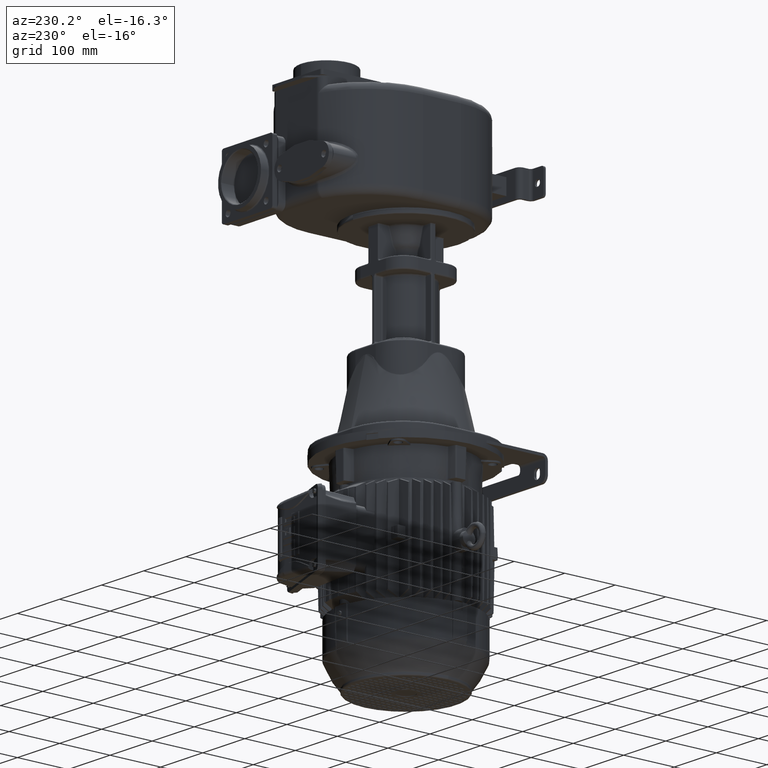
[diagram: clean part render]
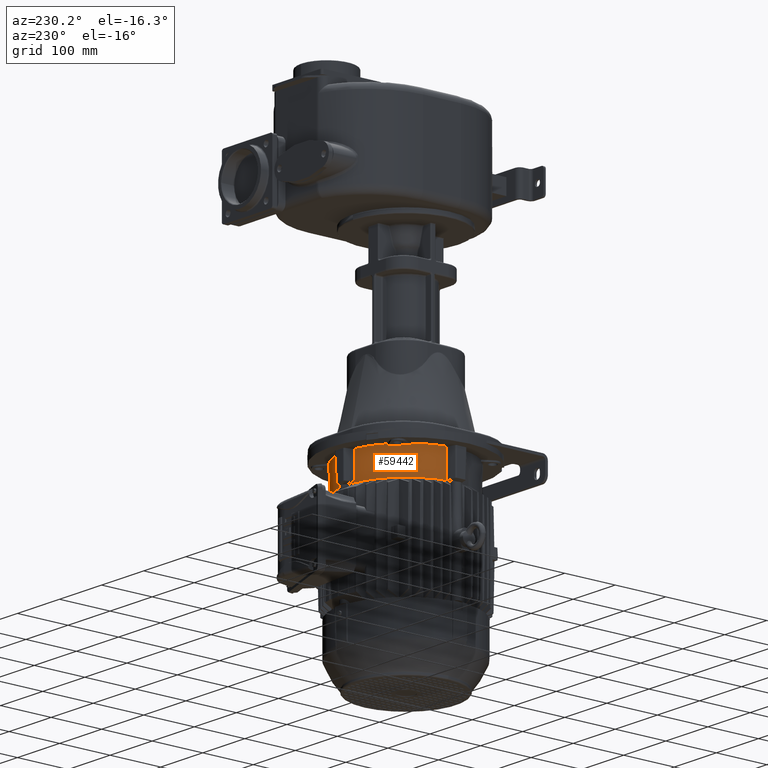
[diagram: same view with one face highlighted and labeled with its STEP entity id]
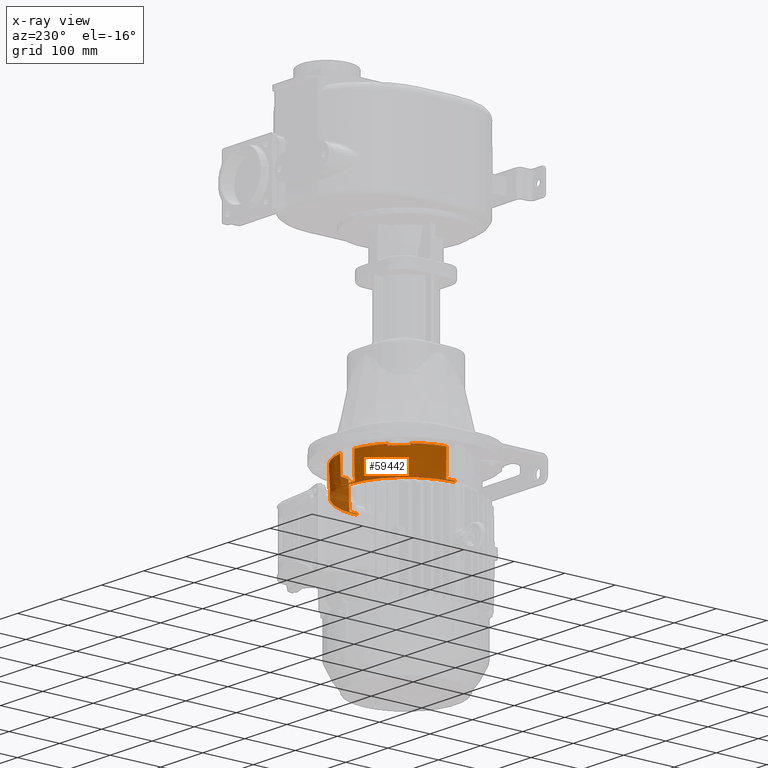
[diagram: x-ray of the same camera — body ghosted, the highlighted face saturated]
A machine part, auxiliary view. The second image highlights one B-rep face of the part: STEP entity #59442.
The next image is the same camera in x-ray: the body ghosted, the highlighted face saturated — about 11% of this face is hidden behind the body in this view.
In plain terms, the highlighted conical surface has half-angle 1.5 deg.
Its self-contained STEP definition (entity closure, byte-faithful):
#11921=DIRECTION('',(-2.617694830787E-2,1.136421979718E-13,-9.996573249756E-1));
#11922=VECTOR('',#11921,2.000785619261E0);
#11923=CARTESIAN_POINT('',(1.160523718431E2,1.309999999999E2,-4.99E2));
#11924=LINE('',#11923,#11922);
#11925=CARTESIAN_POINT('',(1.161959646731E2,1.477783966772E2,
-4.475000039795E2));
#11926=CARTESIAN_POINT('',(1.160533001873E2,1.477139190570E2,
-4.532426896812E2));
#11927=CARTESIAN_POINT('',(1.157685810733E2,1.475851670952E2,
-4.647144265618E2));
#11928=CARTESIAN_POINT('',(1.153420030052E2,1.473924451017E2,
-4.818810732860E2));
#11929=CARTESIAN_POINT('',(1.150579501666E2,1.472642363682E2,
-4.932982365512E2));
#11930=CARTESIAN_POINT('',(1.149162285199E2,1.472002329869E2,
-4.990000038905E2));
#11932=CARTESIAN_POINT('',(9.431775588780E1,2.007760983013E2,-4.505E2));
#11933=CARTESIAN_POINT('',(9.433203364353E1,2.008008280997E2,
-4.495000000516E2));
#11934=CARTESIAN_POINT('',(9.434631049574E1,2.008255563330E2,
-4.485000000515E2));
#11935=CARTESIAN_POINT('',(9.436058644658E1,2.008502830052E2,-4.475E2));
#11937=CARTESIAN_POINT('',(6.985028300531E1,2.253605864465E2,-4.475E2));
#11938=CARTESIAN_POINT('',(6.982555633312E1,2.253463104957E2,
-4.485000000515E2));
#11939=CARTESIAN_POINT('',(6.980082809972E1,2.253320336435E2,
-4.495000000516E2));
#11940=CARTESIAN_POINT('',(6.977609830138E1,2.253177558877E2,-4.505E2));
#11942=CARTESIAN_POINT('',(1.620023299219E1,2.459162285577E2,
-4.990000039753E2));
#11943=CARTESIAN_POINT('',(1.626423593300E1,2.460579492294E2,
-4.932982758668E2));
#11944=CARTESIAN_POINT('',(1.639244407028E1,2.463420007154E2,
-4.818811651458E2));
#11945=CARTESIAN_POINT('',(1.658516605991E1,2.467685787508E2,
-4.647145182594E2));
#11946=CARTESIAN_POINT('',(1.671391862979E1,2.470532993133E2,
-4.532427290345E2));
#11947=CARTESIAN_POINT('',(1.677839669268E1,2.471959647790E2,
-4.475000038922E2));
#11949=CARTESIAN_POINT('',(-1.677839668202E1,2.471959647061E2,
-4.475000039778E2));
#11950=CARTESIAN_POINT('',(-1.671391906187E1,2.470533002203E2,
-4.532426896801E2));
#11951=CARTESIAN_POINT('',(-1.658516709375E1,2.467685810625E2,
-4.647144265567E2));
#11952=CARTESIAN_POINT('',(-1.639244510014E1,2.463420029936E2,
-4.818810732848E2));
#11953=CARTESIAN_POINT('',(-1.626423637307E1,2.460579502007E2,
-4.932982365506E2));
#11954=CARTESIAN_POINT('',(-1.620023299181E1,2.459162285540E2,
-4.990000038905E2));
#11956=CARTESIAN_POINT('',(-6.977609830138E1,2.253177558877E2,-4.505E2));
#11957=CARTESIAN_POINT('',(-6.980082809972E1,2.253320336435E2,
-4.495000000516E2));
#11958=CARTESIAN_POINT('',(-6.982555633312E1,2.253463104957E2,
-4.485000000515E2));
#11959=CARTESIAN_POINT('',(-6.985028300531E1,2.253605864465E2,-4.475E2));
#11961=CARTESIAN_POINT('',(-9.436058644658E1,2.008502830052E2,-4.475E2));
#11962=CARTESIAN_POINT('',(-9.434631049574E1,2.008255563330E2,
-4.485000000515E2));
#11963=CARTESIAN_POINT('',(-9.433203364353E1,2.008008280997E2,
-4.495000000516E2));
#11964=CARTESIAN_POINT('',(-9.431775588780E1,2.007760983013E2,-4.505E2));
#11966=CARTESIAN_POINT('',(-1.149162285384E2,1.472002329894E2,
-4.990000039763E2));
#11967=CARTESIAN_POINT('',(-1.150579492101E2,1.472642359302E2,
-4.932982758675E2));
#11968=CARTESIAN_POINT('',(-1.153420007167E2,1.473924440703E2,
-4.818811651488E2));
#11969=CARTESIAN_POINT('',(-1.157685787754E2,1.475851660634E2,
-4.647145182602E2));
#11970=CARTESIAN_POINT('',(-1.160532992552E2,1.477139186213E2,
-4.532427290348E2));
#11971=CARTESIAN_POINT('',(-1.161959647210E2,1.477783966842E2,
-4.475000038922E2));
#11973=CARTESIAN_POINT('',(0.E0,1.309999999999E2,-5.010001E2));
#11974=DIRECTION('',(0.E0,0.E0,1.E0));
#11975=DIRECTION('',(-3.704875104865E-2,9.993134593538E-1,0.E0));
#11976=AXIS2_PLACEMENT_3D('',#11973,#11974,#11975);
#11978=CARTESIAN_POINT('',(0.E0,1.309999999999E2,-5.010001E2));
#11979=DIRECTION('',(0.E0,0.E0,-1.E0));
#11980=DIRECTION('',(-3.704874599741E-2,9.993134595411E-1,0.E0));
#11981=AXIS2_PLACEMENT_3D('',#11978,#11979,#11980);
#11983=CARTESIAN_POINT('',(0.E0,1.309999999999E2,-5.010001E2));
#11984=DIRECTION('',(0.E0,0.E0,1.E0));
#11985=DIRECTION('',(9.993134593538E-1,3.704875104887E-2,0.E0));
#11986=AXIS2_PLACEMENT_3D('',#11983,#11984,#11985);
#11988=CARTESIAN_POINT('',(0.E0,1.309999999999E2,-5.010001E2));
#11989=DIRECTION('',(0.E0,0.E0,1.E0));
#11990=DIRECTION('',(1.E0,0.E0,0.E0));
#11991=AXIS2_PLACEMENT_3D('',#11988,#11989,#11990);
#11998=DIRECTION('',(2.617694830786E-2,1.278474727183E-13,-9.996573249756E-1));
#11999=VECTOR('',#11998,2.000785619261E0);
#12000=CARTESIAN_POINT('',(-1.160523718431E2,1.309999999999E2,-4.99E2));
#12001=LINE('',#12000,#11999);
#12070=CARTESIAN_POINT('',(0.E0,1.309999999999E2,-5.010001E2));
#12071=DIRECTION('',(0.E0,0.E0,-1.E0));
#12072=DIRECTION('',(-1.E0,0.E0,0.E0));
#12073=AXIS2_PLACEMENT_3D('',#12070,#12071,#12072);
#13349=CARTESIAN_POINT('',(0.E0,1.309999999999E2,-4.99E2));
#13350=DIRECTION('',(0.E0,0.E0,1.E0));
#13351=DIRECTION('',(-9.902088268444E-1,1.395939799542E-1,0.E0));
#13352=AXIS2_PLACEMENT_3D('',#13349,#13350,#13351);
#13400=CARTESIAN_POINT('',(0.E0,1.309999999999E2,-4.475E2));
#13401=DIRECTION('',(0.E0,0.E0,1.E0));
#13402=DIRECTION('',(5.949720586321E-1,8.037463837848E-1,0.E0));
#13403=AXIS2_PLACEMENT_3D('',#13400,#13401,#13402);
#13418=CARTESIAN_POINT('',(0.E0,1.309999999999E2,-4.475E2));
#13419=DIRECTION('',(0.E0,0.E0,1.E0));
#13420=DIRECTION('',(9.897349420994E-1,1.429151650017E-1,0.E0));
#13421=AXIS2_PLACEMENT_3D('',#13418,#13419,#13420);
#13495=CARTESIAN_POINT('',(0.E0,1.309999999999E2,-4.475E2));
#13496=DIRECTION('',(0.E0,0.E0,1.E0));
#13497=DIRECTION('',(-8.037463837847E-1,5.949720586321E-1,0.E0));
#13498=AXIS2_PLACEMENT_3D('',#13495,#13496,#13497);
#13518=CARTESIAN_POINT('',(0.E0,1.309999999999E2,-4.475E2));
#13519=DIRECTION('',(0.E0,0.E0,1.E0));
#13520=DIRECTION('',(-1.429151650017E-1,9.897349420994E-1,0.E0));
#13521=AXIS2_PLACEMENT_3D('',#13518,#13519,#13520);
#23624=CARTESIAN_POINT('',(0.E0,1.309999999999E2,-4.505E2));
#23625=DIRECTION('',(0.E0,0.E0,1.E0));
#23626=DIRECTION('',(8.039194961863E-1,5.947381303158E-1,0.E0));
#23627=AXIS2_PLACEMENT_3D('',#23624,#23625,#23626);
#23689=CARTESIAN_POINT('',(0.E0,1.309999999999E2,-4.99E2));
#23690=DIRECTION('',(0.E0,0.E0,1.E0));
#23691=DIRECTION('',(1.E0,0.E0,0.E0));
#23692=AXIS2_PLACEMENT_3D('',#23689,#23690,#23691);
#24038=CARTESIAN_POINT('',(-1.149162285384E2,1.472002329894E2,
-4.990000039763E2));
#24054=CARTESIAN_POINT('',(0.E0,1.309999999999E2,-4.505E2));
#24055=DIRECTION('',(0.E0,0.E0,1.E0));
#24056=DIRECTION('',(-5.947381303158E-1,8.039194961863E-1,0.E0));
#24057=AXIS2_PLACEMENT_3D('',#24054,#24055,#24056);
#24127=CARTESIAN_POINT('',(-1.620023299181E1,2.459162285540E2,
-4.990000038905E2));
#24137=CARTESIAN_POINT('',(0.E0,1.309999999999E2,-4.99E2));
#24138=DIRECTION('',(0.E0,0.E0,1.E0));
#24139=DIRECTION('',(1.395939799542E-1,9.902088268444E-1,0.E0));
#24140=AXIS2_PLACEMENT_3D('',#24137,#24138,#24139);
#24194=CARTESIAN_POINT('',(1.620023299219E1,2.459162285577E2,
-4.990000039753E2));
#43129=VERTEX_POINT('',#24127);
#43159=CARTESIAN_POINT('',(6.977609830138E1,2.253177558877E2,-4.505E2));
#43161=VERTEX_POINT('',#43159);
#43189=VERTEX_POINT('',#24038);
#43195=VERTEX_POINT('',#24194);
#43228=CARTESIAN_POINT('',(-9.431775588780E1,2.007760983013E2,-4.505E2));
#43229=VERTEX_POINT('',#43228);
#43236=CARTESIAN_POINT('',(9.431775588780E1,2.007760983013E2,-4.505E2));
#43237=VERTEX_POINT('',#43236);
#43244=CARTESIAN_POINT('',(-6.977609830138E1,2.253177558877E2,-4.505E2));
#43245=VERTEX_POINT('',#43244);
#43248=CARTESIAN_POINT('',(1.160523718431E2,1.309999999999E2,-4.99E2));
#43249=CARTESIAN_POINT('',(1.159999973814E2,1.309999999999E2,-5.010001E2));
#43250=VERTEX_POINT('',#43248);
#43251=VERTEX_POINT('',#43249);
#43258=CARTESIAN_POINT('',(-1.160523718431E2,1.309999999999E2,-4.99E2));
#43259=CARTESIAN_POINT('',(-1.159999973814E2,1.309999999999E2,-5.010001E2));
#43260=VERTEX_POINT('',#43258);
#43261=VERTEX_POINT('',#43259);
#43280=CARTESIAN_POINT('',(6.985028300531E1,2.253605864465E2,-4.475E2));
#43281=CARTESIAN_POINT('',(1.677837568386E1,2.471958192874E2,-4.475E2));
#43282=VERTEX_POINT('',#43280);
#43283=VERTEX_POINT('',#43281);
#43290=CARTESIAN_POINT('',(-1.677837568385E1,2.471958192874E2,-4.475E2));
#43291=CARTESIAN_POINT('',(-6.985028300531E1,2.253605864465E2,-4.475E2));
#43292=VERTEX_POINT('',#43290);
#43293=VERTEX_POINT('',#43291);
#43294=CARTESIAN_POINT('',(-9.436058644658E1,2.008502830052E2,-4.475E2));
#43295=VERTEX_POINT('',#43294);
#43298=CARTESIAN_POINT('',(-1.161958192874E2,1.477783756838E2,-4.475E2));
#43299=VERTEX_POINT('',#43298);
#43301=CARTESIAN_POINT('',(1.161958192874E2,1.477783756838E2,-4.475E2));
#43302=CARTESIAN_POINT('',(9.436058644658E1,2.008502830052E2,-4.475E2));
#43303=VERTEX_POINT('',#43301);
#43304=VERTEX_POINT('',#43302);
#43305=VERTEX_POINT('',#11930);
#43571=CARTESIAN_POINT('',(1.159203585445E2,1.352976544821E2,-5.010001E2));
#43573=VERTEX_POINT('',#43571);
#43576=CARTESIAN_POINT('',(-1.159203585606E2,1.352976545162E2,-5.010001E2));
#43578=VERTEX_POINT('',#43576);
#43579=CARTESIAN_POINT('',(4.297654992560E0,2.469203587860E2,-5.010001E2));
#43580=VERTEX_POINT('',#43579);
#43585=CARTESIAN_POINT('',(-4.297654992544E0,2.469203587860E2,-5.010001E2));
#43586=VERTEX_POINT('',#43585);
#59388=CARTESIAN_POINT('',(0.E0,1.309999999999E2,-4.7425005E2));
#59389=DIRECTION('',(0.E0,0.E0,1.E0));
#59390=DIRECTION('',(-1.E0,0.E0,0.E0));
#59391=AXIS2_PLACEMENT_3D('',#59388,#59389,#59390);
#59392=CONICAL_SURFACE('',#59391,1.167004720927E2,1.5E0);
#59394=ORIENTED_EDGE('',*,*,#59393,.F.);
#59396=ORIENTED_EDGE('',*,*,#59395,.T.);
#59398=ORIENTED_EDGE('',*,*,#59397,.F.);
#59400=ORIENTED_EDGE('',*,*,#59399,.T.);
#59402=ORIENTED_EDGE('',*,*,#59401,.F.);
#59404=ORIENTED_EDGE('',*,*,#59403,.T.);
#59406=ORIENTED_EDGE('',*,*,#59405,.F.);
#59408=ORIENTED_EDGE('',*,*,#59407,.T.);
#59410=ORIENTED_EDGE('',*,*,#59409,.F.);
#59412=ORIENTED_EDGE('',*,*,#59411,.T.);
#59414=ORIENTED_EDGE('',*,*,#59413,.F.);
#59416=ORIENTED_EDGE('',*,*,#59415,.T.);
#59418=ORIENTED_EDGE('',*,*,#59417,.F.);
#59420=ORIENTED_EDGE('',*,*,#59419,.T.);
#59422=ORIENTED_EDGE('',*,*,#59421,.F.);
#59424=ORIENTED_EDGE('',*,*,#59423,.T.);
#59426=ORIENTED_EDGE('',*,*,#59425,.F.);
#59428=ORIENTED_EDGE('',*,*,#59427,.T.);
#59430=ORIENTED_EDGE('',*,*,#59429,.T.);
#59432=ORIENTED_EDGE('',*,*,#59431,.T.);
#59434=ORIENTED_EDGE('',*,*,#59433,.F.);
#59435=ORIENTED_EDGE('',*,*,#59383,.T.);
#59437=ORIENTED_EDGE('',*,*,#59436,.F.);
#59439=ORIENTED_EDGE('',*,*,#59438,.F.);
#59440=EDGE_LOOP('',(#59394,#59396,#59398,#59400,#59402,#59404,#59406,#59408,
#59410,#59412,#59414,#59416,#59418,#59420,#59422,#59424,#59426,#59428,#59430,
#59432,#59434,#59435,#59437,#59439));
#59441=FACE_OUTER_BOUND('',#59440,.F.);
#59442=ADVANCED_FACE('',(#59441),#59392,.T.);
#11931=B_SPLINE_CURVE_WITH_KNOTS('',3,(#11925,#11926,#11927,#11928,#11929,
#11930),.UNSPECIFIED.,.F.,.F.,(4,1,1,4),(0.E0,3.333333333333E-1,
6.666666666667E-1,1.E0),.UNSPECIFIED.);
#11936=B_SPLINE_CURVE_WITH_KNOTS('',3,(#11932,#11933,#11934,#11935),
.UNSPECIFIED.,.F.,.F.,(4,4),(0.E0,1.E0),.UNSPECIFIED.);
#11941=B_SPLINE_CURVE_WITH_KNOTS('',3,(#11937,#11938,#11939,#11940),
.UNSPECIFIED.,.F.,.F.,(4,4),(0.E0,1.E0),.UNSPECIFIED.);
#11948=B_SPLINE_CURVE_WITH_KNOTS('',3,(#11942,#11943,#11944,#11945,#11946,
#11947),.UNSPECIFIED.,.F.,.F.,(4,1,1,4),(0.E0,3.333333333333E-1,
6.666666666667E-1,1.E0),.UNSPECIFIED.);
#11955=B_SPLINE_CURVE_WITH_KNOTS('',3,(#11949,#11950,#11951,#11952,#11953,
#11954),.UNSPECIFIED.,.F.,.F.,(4,1,1,4),(0.E0,3.333333333333E-1,
6.666666666667E-1,1.E0),.UNSPECIFIED.);
#11960=B_SPLINE_CURVE_WITH_KNOTS('',3,(#11956,#11957,#11958,#11959),
.UNSPECIFIED.,.F.,.F.,(4,4),(0.E0,1.E0),.UNSPECIFIED.);
#11965=B_SPLINE_CURVE_WITH_KNOTS('',3,(#11961,#11962,#11963,#11964),
.UNSPECIFIED.,.F.,.F.,(4,4),(0.E0,1.E0),.UNSPECIFIED.);
#11972=B_SPLINE_CURVE_WITH_KNOTS('',3,(#11966,#11967,#11968,#11969,#11970,
#11971),.UNSPECIFIED.,.F.,.F.,(4,1,1,4),(0.E0,3.333333333333E-1,
6.666666666667E-1,1.E0),.UNSPECIFIED.);
#11977=CIRCLE('',#11976,1.159999973814E2);
#11982=CIRCLE('',#11981,1.159999973814E2);
#11987=CIRCLE('',#11986,1.159999973814E2);
#11992=CIRCLE('',#11991,1.159999973814E2);
#12074=CIRCLE('',#12073,1.159999973814E2);
#13353=CIRCLE('',#13352,1.160523718431E2);
#13404=CIRCLE('',#13403,1.174009468040E2);
#13422=CIRCLE('',#13421,1.174009468040E2);
#13499=CIRCLE('',#13498,1.174009468040E2);
#13522=CIRCLE('',#13521,1.174009468040E2);
#23628=CIRCLE('',#23627,1.173223890392E2);
#23693=CIRCLE('',#23692,1.160523718431E2);
#24058=CIRCLE('',#24057,1.173223890392E2);
#24141=CIRCLE('',#24140,1.160523718431E2);
#59383=EDGE_CURVE('',#43586,#43580,#11982,.T.);
#59393=EDGE_CURVE('',#43250,#43251,#11924,.T.);
#59395=EDGE_CURVE('',#43250,#43305,#23693,.T.);
#59397=EDGE_CURVE('',#43303,#43305,#11931,.T.);
#59399=EDGE_CURVE('',#43303,#43304,#13422,.T.);
#59401=EDGE_CURVE('',#43237,#43304,#11936,.T.);
#59403=EDGE_CURVE('',#43237,#43161,#23628,.T.);
#59405=EDGE_CURVE('',#43282,#43161,#11941,.T.);
#59407=EDGE_CURVE('',#43282,#43283,#13404,.T.);
#59409=EDGE_CURVE('',#43195,#43283,#11948,.T.);
#59411=EDGE_CURVE('',#43195,#43129,#24141,.T.);
#59413=EDGE_CURVE('',#43292,#43129,#11955,.T.);
#59415=EDGE_CURVE('',#43292,#43293,#13522,.T.);
#59417=EDGE_CURVE('',#43245,#43293,#11960,.T.);
#59419=EDGE_CURVE('',#43245,#43229,#24058,.T.);
#59421=EDGE_CURVE('',#43295,#43229,#11965,.T.);
#59423=EDGE_CURVE('',#43295,#43299,#13499,.T.);
#59425=EDGE_CURVE('',#43189,#43299,#11972,.T.);
#59427=EDGE_CURVE('',#43189,#43260,#13353,.T.);
#59429=EDGE_CURVE('',#43260,#43261,#12001,.T.);
#59431=EDGE_CURVE('',#43261,#43578,#12074,.T.);
#59433=EDGE_CURVE('',#43586,#43578,#11977,.T.);
#59436=EDGE_CURVE('',#43573,#43580,#11987,.T.);
#59438=EDGE_CURVE('',#43251,#43573,#11992,.T.);